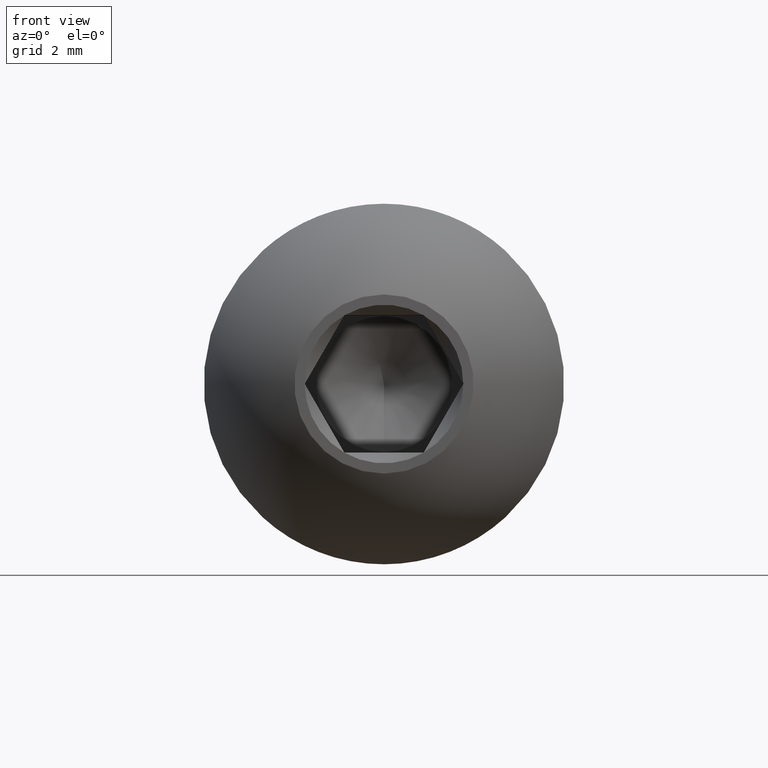
[diagram: clean part render]
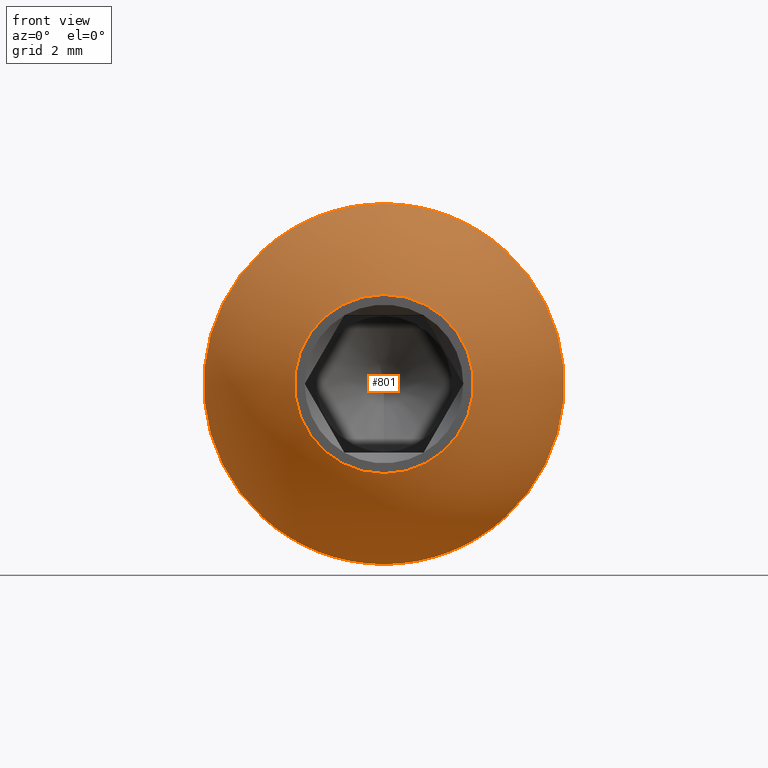
[diagram: same view with one face highlighted and labeled with its STEP entity id]
A machine part, front view. The second image highlights one B-rep face of the part: STEP entity #801.
In plain terms, the highlighted spherical surface has radius 5.6036 mm.
Its self-contained STEP definition (entity closure, byte-faithful):
#315 = CARTESIAN_POINT ( 'NONE',  ( 0.0000000000000000000, -8.673617379884035500E-016, -2.609401076758501000 ) ) ;
#317 = CARTESIAN_POINT ( 'NONE',  ( 0.0000000000000000000, -8.673617379884035500E-016, 0.0000000000000000000 ) ) ;
#455 = EDGE_LOOP ( 'NONE', ( #2790 ) ) ;
#677 = VERTEX_POINT ( 'NONE', #315 ) ;
#801 = ADVANCED_FACE ( 'NONE', ( #9998, #12759 ), #12931, .T. ) ;
#911 = CARTESIAN_POINT ( 'NONE',  ( 0.0000000000000000000, 4.958921003435260200, 0.0000000000000000000 ) ) ;
#1270 = AXIS2_PLACEMENT_3D ( 'NONE', #317, #4871, #3722 ) ;
#1592 = CIRCLE ( 'NONE', #1270, 2.609401076758501000 ) ;
#2090 = DIRECTION ( 'NONE',  ( 1.000000000000000000, 0.0000000000000000000, 0.0000000000000000000 ) ) ;
#2790 = ORIENTED_EDGE ( 'NONE', *, *, #12346, .F. ) ;
#3000 = DIRECTION ( 'NONE',  ( -0.0000000000000000000, -1.000000000000000000, -0.0000000000000000000 ) ) ;
#3722 = DIRECTION ( 'NONE',  ( 0.0000000000000000000, 0.0000000000000000000, -1.000000000000000000 ) ) ;
#4871 = DIRECTION ( 'NONE',  ( -0.0000000000000000000, -1.000000000000000000, -0.0000000000000000000 ) ) ;
#4899 = EDGE_LOOP ( 'NONE', ( #13014 ) ) ;
#7070 = EDGE_CURVE ( 'NONE', #9727, #9727, #10159, .T. ) ;
#7574 = AXIS2_PLACEMENT_3D ( 'NONE', #7847, #3000, #8895 ) ;
#7847 = CARTESIAN_POINT ( 'NONE',  ( 0.0000000000000000000, 3.000000000000000000, 0.0000000000000000000 ) ) ;
#8895 = DIRECTION ( 'NONE',  ( 0.0000000000000000000, 0.0000000000000000000, -1.000000000000000000 ) ) ;
#9727 = VERTEX_POINT ( 'NONE', #13315 ) ;
#9998 = FACE_OUTER_BOUND ( 'NONE', #4899, .T. ) ;
#10159 = CIRCLE ( 'NONE', #7574, 5.249999999999999100 ) ;
#12346 = EDGE_CURVE ( 'NONE', #677, #677, #1592, .T. ) ;
#12759 = FACE_OUTER_BOUND ( 'NONE', #455, .T. ) ;
#12931 = SPHERICAL_SURFACE ( 'NONE', #13451, 5.603558824327607500 ) ;
#13014 = ORIENTED_EDGE ( 'NONE', *, *, #7070, .T. ) ;
#13315 = CARTESIAN_POINT ( 'NONE',  ( 0.0000000000000000000, 3.000000000000000000, -5.249999999999999100 ) ) ;
#13451 = AXIS2_PLACEMENT_3D ( 'NONE', #911, #14916, #2090 ) ;
#14916 = DIRECTION ( 'NONE',  ( 0.0000000000000000000, 0.0000000000000000000, 1.000000000000000000 ) ) ;